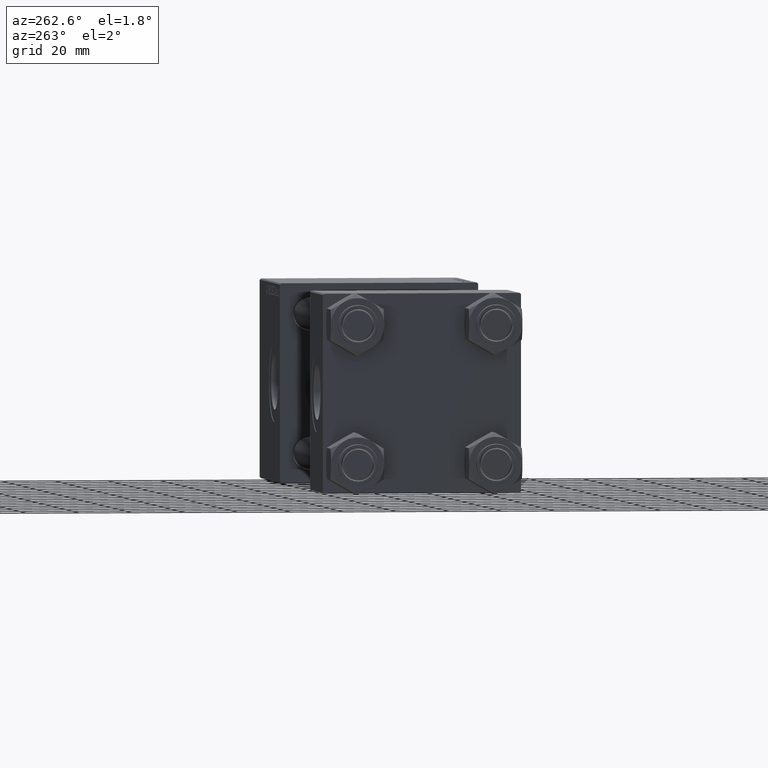
[diagram: clean part render]
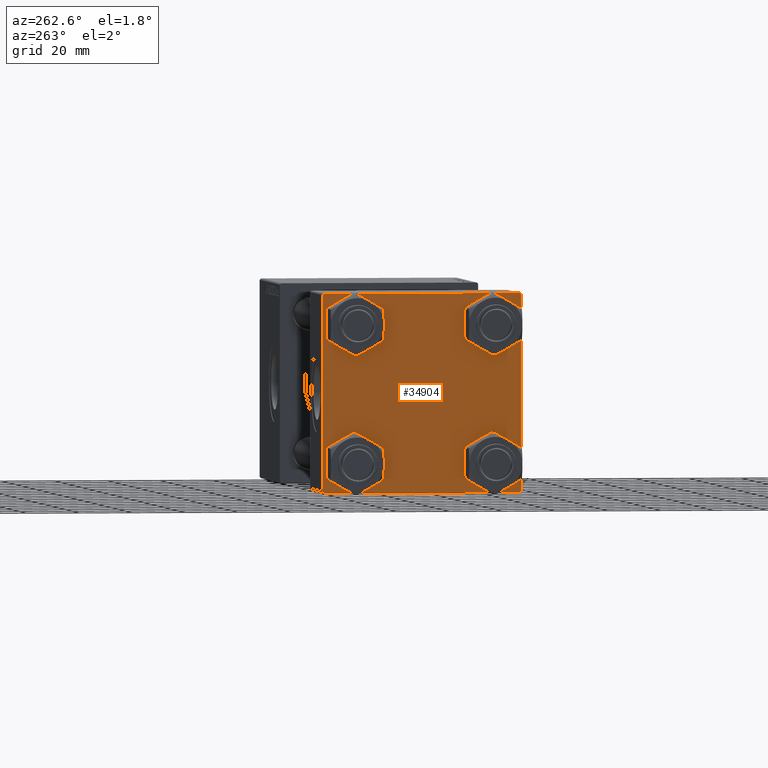
[diagram: same view with one face highlighted and labeled with its STEP entity id]
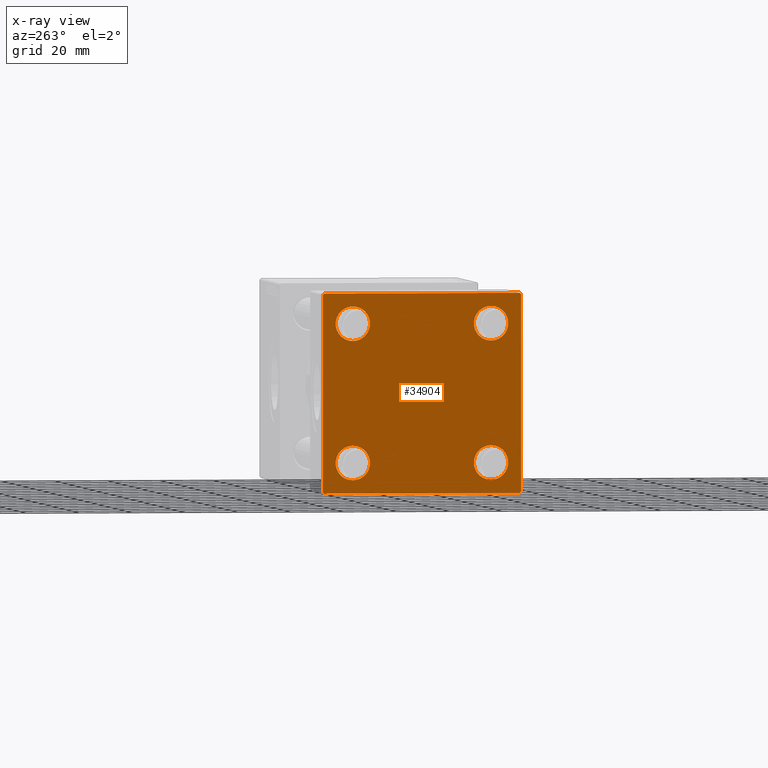
[diagram: x-ray of the same camera — body ghosted, the highlighted face saturated]
A machine part, auxiliary view. The second image highlights one B-rep face of the part: STEP entity #34904.
The next image is the same camera in x-ray: the body ghosted, the highlighted face saturated — about 0% of this face is hidden behind the body in this view.
In plain terms, the highlighted planar face has unit normal (-1, 0, 0).
Its self-contained STEP definition (entity closure, byte-faithful):
#216 = VECTOR ( 'NONE', #2105, 1000.000000000000000 ) ;
#533 = DIRECTION ( 'NONE',  ( -0.000000000000000000, 0.000000000000000000, 1.000000000000000000 ) ) ;
#679 = EDGE_CURVE ( 'NONE', #47823, #10723, #18340, .T. ) ;
#958 = EDGE_CURVE ( 'NONE', #45923, #44223, #37488, .T. ) ;
#1464 = ORIENTED_EDGE ( 'NONE', *, *, #958, .T. ) ;
#1476 = ORIENTED_EDGE ( 'NONE', *, *, #31667, .T. ) ;
#2105 = DIRECTION ( 'NONE',  ( 0.000000000000000000, -0.7071067811865524577, 0.7071067811865426878 ) ) ;
#2166 = CARTESIAN_POINT ( 'NONE',  ( 0.000000000000000000, 36.99999999999997868, -37.50000000000000000 ) ) ;
#2387 = CARTESIAN_POINT ( 'NONE',  ( 0.000000000000000000, 37.49999999999999289, -37.50000000000000000 ) ) ;
#4301 = ORIENTED_EDGE ( 'NONE', *, *, #29696, .T. ) ;
#4378 = FACE_OUTER_BOUND ( 'NONE', #45947, .T. ) ;
#4655 = DIRECTION ( 'NONE',  ( 0.000000000000000000, 0.000000000000000000, 1.000000000000000000 ) ) ;
#4882 = FACE_BOUND ( 'NONE', #27503, .T. ) ;
#5202 = ORIENTED_EDGE ( 'NONE', *, *, #679, .T. ) ;
#5826 = AXIS2_PLACEMENT_3D ( 'NONE', #35632, #47920, #533 ) ;
#6112 = VECTOR ( 'NONE', #18690, 1000.000000000000114 ) ;
#6126 = VECTOR ( 'NONE', #18018, 1000.000000000000000 ) ;
#6153 = CARTESIAN_POINT ( 'NONE',  ( 0.000000000000000000, 37.49999999999999289, 37.50000000000000000 ) ) ;
#6358 = CARTESIAN_POINT ( 'NONE',  ( 0.000000000000000000, -37.00000000000002132, -37.50000000000000711 ) ) ;
#6531 = VERTEX_POINT ( 'NONE', #13486 ) ;
#7433 = VERTEX_POINT ( 'NONE', #43440 ) ;
#7592 = CARTESIAN_POINT ( 'NONE',  ( 0.000000000000000000, -26.14999999999999147, 26.15000000000000924 ) ) ;
#7610 = VERTEX_POINT ( 'NONE', #37509 ) ;
#7713 = DIRECTION ( 'NONE',  ( 1.000000000000000000, -0.000000000000000000, 0.000000000000000000 ) ) ;
#7963 = CARTESIAN_POINT ( 'NONE',  ( 0.000000000000000000, 36.99999999999999289, 37.50000000000000000 ) ) ;
#8359 = DIRECTION ( 'NONE',  ( 1.000000000000000000, -0.000000000000000000, 0.000000000000000000 ) ) ;
#8375 = LINE ( 'NONE', #24004, #6112 ) ;
#8504 = AXIS2_PLACEMENT_3D ( 'NONE', #33680, #38292, #34189 ) ;
#8973 = LINE ( 'NONE', #32537, #49920 ) ;
#9138 = ORIENTED_EDGE ( 'NONE', *, *, #25536, .T. ) ;
#10403 = ORIENTED_EDGE ( 'NONE', *, *, #12844, .T. ) ;
#10723 = VERTEX_POINT ( 'NONE', #44681 ) ;
#10991 = CIRCLE ( 'NONE', #14233, 6.500000000000015987 ) ;
#10999 = AXIS2_PLACEMENT_3D ( 'NONE', #13990, #18593, #34215 ) ;
#11597 = CIRCLE ( 'NONE', #45122, 6.500000000000023093 ) ;
#11912 = EDGE_CURVE ( 'NONE', #46295, #49685, #8973, .T. ) ;
#12322 = FACE_BOUND ( 'NONE', #27232, .T. ) ;
#12394 = VECTOR ( 'NONE', #18691, 1000.000000000000000 ) ;
#12844 = EDGE_CURVE ( 'NONE', #38713, #19678, #36779, .T. ) ;
#13486 = CARTESIAN_POINT ( 'NONE',  ( 0.000000000000000000, -26.14999999999999147, -32.65000000000002700 ) ) ;
#13990 = CARTESIAN_POINT ( 'NONE',  ( 0.000000000000000000, -26.14999999999999147, 26.15000000000000924 ) ) ;
#14233 = AXIS2_PLACEMENT_3D ( 'NONE', #45381, #40566, #48960 ) ;
#14844 = AXIS2_PLACEMENT_3D ( 'NONE', #7592, #8359, #39624 ) ;
#15611 = DIRECTION ( 'NONE',  ( 0.000000000000000000, 0.000000000000000000, 1.000000000000000000 ) ) ;
#15809 = ORIENTED_EDGE ( 'NONE', *, *, #11912, .F. ) ;
#16072 = ORIENTED_EDGE ( 'NONE', *, *, #36114, .T. ) ;
#16770 = CARTESIAN_POINT ( 'NONE',  ( 0.000000000000000000, 37.49999999999999289, 37.50000000000000000 ) ) ;
#16907 = DIRECTION ( 'NONE',  ( -0.000000000000000000, -0.7071067811865474617, -0.7071067811865474617 ) ) ;
#17279 = EDGE_CURVE ( 'NONE', #7433, #40091, #21789, .T. ) ;
#17480 = LINE ( 'NONE', #24915, #216 ) ;
#18018 = DIRECTION ( 'NONE',  ( 0.000000000000000000, -1.000000000000000000, -9.251858538542972814E-17 ) ) ;
#18340 = CIRCLE ( 'NONE', #10999, 6.500000000000023093 ) ;
#18593 = DIRECTION ( 'NONE',  ( 1.000000000000000000, -0.000000000000000000, 0.000000000000000000 ) ) ;
#18690 = DIRECTION ( 'NONE',  ( -0.000000000000000000, 0.7071067811865474617, 0.7071067811865474617 ) ) ;
#18691 = DIRECTION ( 'NONE',  ( 0.000000000000000000, 0.000000000000000000, -1.000000000000000000 ) ) ;
#19678 = VERTEX_POINT ( 'NONE', #33696 ) ;
#20012 = PLANE ( 'NONE',  #5826 ) ;
#20035 = EDGE_CURVE ( 'NONE', #25371, #7610, #36230, .T. ) ;
#20489 = LINE ( 'NONE', #28177, #47072 ) ;
#20603 = ORIENTED_EDGE ( 'NONE', *, *, #26890, .T. ) ;
#21089 = EDGE_LOOP ( 'NONE', ( #41493, #10403 ) ) ;
#21119 = CARTESIAN_POINT ( 'NONE',  ( 0.000000000000000000, 26.14999999999999858, 32.65000000000002700 ) ) ;
#21230 = AXIS2_PLACEMENT_3D ( 'NONE', #27172, #7713, #23088 ) ;
#21789 = LINE ( 'NONE', #6153, #12394 ) ;
#22171 = ORIENTED_EDGE ( 'NONE', *, *, #17279, .T. ) ;
#22550 = CARTESIAN_POINT ( 'NONE',  ( 0.000000000000000000, -26.14999999999999147, 32.65000000000003411 ) ) ;
#22821 = CARTESIAN_POINT ( 'NONE',  ( 0.000000000000000000, -26.14999999999999147, -26.15000000000000924 ) ) ;
#23023 = DIRECTION ( 'NONE',  ( 0.000000000000000000, 0.7071067811865474617, -0.7071067811865474617 ) ) ;
#23088 = DIRECTION ( 'NONE',  ( 0.000000000000000000, 0.000000000000000000, 1.000000000000000000 ) ) ;
#24004 = CARTESIAN_POINT ( 'NONE',  ( -0.000000000000000000, -37.25000000000000000, 37.25000000000000000 ) ) ;
#24066 = AXIS2_PLACEMENT_3D ( 'NONE', #22821, #30230, #37681 ) ;
#24351 = CARTESIAN_POINT ( 'NONE',  ( 0.000000000000000000, 26.14999999999999858, -32.65000000000001990 ) ) ;
#24876 = CIRCLE ( 'NONE', #46146, 6.500000000000015987 ) ;
#24915 = CARTESIAN_POINT ( 'NONE',  ( 0.000000000000000000, -37.24999999999975842, -37.25000000000027001 ) ) ;
#25037 = EDGE_CURVE ( 'NONE', #19678, #38713, #10991, .T. ) ;
#25371 = VERTEX_POINT ( 'NONE', #7963 ) ;
#25536 = EDGE_CURVE ( 'NONE', #25371, #7433, #42490, .T. ) ;
#26358 = CARTESIAN_POINT ( 'NONE',  ( 0.000000000000000000, 37.24999999999999289, 37.24999999999999289 ) ) ;
#26890 = EDGE_CURVE ( 'NONE', #36356, #49363, #36294, .T. ) ;
#27172 = CARTESIAN_POINT ( 'NONE',  ( 0.000000000000000000, 26.14999999999999858, -26.15000000000000213 ) ) ;
#27232 = EDGE_LOOP ( 'NONE', ( #28607, #32526 ) ) ;
#27503 = EDGE_LOOP ( 'NONE', ( #20603, #16072 ) ) ;
#27643 = CARTESIAN_POINT ( 'NONE',  ( 0.000000000000000000, 26.14999999999999858, 26.15000000000000213 ) ) ;
#28122 = ORIENTED_EDGE ( 'NONE', *, *, #20035, .F. ) ;
#28172 = EDGE_CURVE ( 'NONE', #46086, #6531, #24876, .T. ) ;
#28177 = CARTESIAN_POINT ( 'NONE',  ( 0.000000000000000000, 37.24999999999998579, -37.24999999999998579 ) ) ;
#28607 = ORIENTED_EDGE ( 'NONE', *, *, #28172, .T. ) ;
#29419 = ORIENTED_EDGE ( 'NONE', *, *, #39317, .T. ) ;
#29696 = EDGE_CURVE ( 'NONE', #46295, #7610, #8375, .T. ) ;
#30230 = DIRECTION ( 'NONE',  ( 1.000000000000000000, -0.000000000000000000, 0.000000000000000000 ) ) ;
#31667 = EDGE_CURVE ( 'NONE', #40091, #45923, #20489, .T. ) ;
#31788 = FACE_BOUND ( 'NONE', #42935, .T. ) ;
#32526 = ORIENTED_EDGE ( 'NONE', *, *, #45358, .T. ) ;
#32537 = CARTESIAN_POINT ( 'NONE',  ( 0.000000000000000000, -37.50000000000000711, 37.49999999999999289 ) ) ;
#33680 = CARTESIAN_POINT ( 'NONE',  ( 0.000000000000000000, 26.14999999999999858, 26.15000000000000213 ) ) ;
#33696 = CARTESIAN_POINT ( 'NONE',  ( 0.000000000000000000, 26.14999999999999858, -19.64999999999998792 ) ) ;
#34189 = DIRECTION ( 'NONE',  ( 0.000000000000000000, 0.000000000000000000, 1.000000000000000000 ) ) ;
#34215 = DIRECTION ( 'NONE',  ( 0.000000000000000000, 0.000000000000000000, 1.000000000000000000 ) ) ;
#34904 = ADVANCED_FACE ( 'NONE', ( #31788, #12322, #39993, #4882, #4378 ), #20012, .T. ) ;
#35526 = VECTOR ( 'NONE', #23023, 1000.000000000000114 ) ;
#35632 = CARTESIAN_POINT ( 'NONE',  ( 0.000000000000000000, 0.000000000000000000, 0.000000000000000000 ) ) ;
#36114 = EDGE_CURVE ( 'NONE', #49363, #36356, #11597, .T. ) ;
#36230 = LINE ( 'NONE', #16770, #48424 ) ;
#36294 = CIRCLE ( 'NONE', #8504, 6.500000000000023093 ) ;
#36356 = VERTEX_POINT ( 'NONE', #21119 ) ;
#36491 = DIRECTION ( 'NONE',  ( 0.000000000000000000, -1.000000000000000000, -9.251858538542971581E-17 ) ) ;
#36779 = CIRCLE ( 'NONE', #21230, 6.500000000000015987 ) ;
#37387 = CARTESIAN_POINT ( 'NONE',  ( 0.000000000000000000, -37.50000000000000711, 36.99999999999999289 ) ) ;
#37488 = LINE ( 'NONE', #2387, #6126 ) ;
#37509 = CARTESIAN_POINT ( 'NONE',  ( 0.000000000000000000, -37.00000000000000711, 37.49999999999999289 ) ) ;
#37681 = DIRECTION ( 'NONE',  ( 0.000000000000000000, 0.000000000000000000, 1.000000000000000000 ) ) ;
#38292 = DIRECTION ( 'NONE',  ( 1.000000000000000000, -0.000000000000000000, 0.000000000000000000 ) ) ;
#38471 = EDGE_CURVE ( 'NONE', #44223, #49685, #17480, .T. ) ;
#38713 = VERTEX_POINT ( 'NONE', #24351 ) ;
#39215 = DIRECTION ( 'NONE',  ( 0.000000000000000000, 9.251858538542971581E-17, -1.000000000000000000 ) ) ;
#39317 = EDGE_CURVE ( 'NONE', #10723, #47823, #50123, .T. ) ;
#39624 = DIRECTION ( 'NONE',  ( 0.000000000000000000, 0.000000000000000000, 1.000000000000000000 ) ) ;
#39993 = FACE_BOUND ( 'NONE', #21089, .T. ) ;
#40091 = VERTEX_POINT ( 'NONE', #48859 ) ;
#40188 = ORIENTED_EDGE ( 'NONE', *, *, #38471, .T. ) ;
#40566 = DIRECTION ( 'NONE',  ( 1.000000000000000000, -0.000000000000000000, 0.000000000000000000 ) ) ;
#41493 = ORIENTED_EDGE ( 'NONE', *, *, #25037, .T. ) ;
#41760 = CARTESIAN_POINT ( 'NONE',  ( 0.000000000000000000, -37.50000000000000000, -37.00000000000003553 ) ) ;
#42490 = LINE ( 'NONE', #26358, #35526 ) ;
#42586 = CARTESIAN_POINT ( 'NONE',  ( 0.000000000000000000, 26.14999999999999858, 19.64999999999998437 ) ) ;
#42935 = EDGE_LOOP ( 'NONE', ( #5202, #29419 ) ) ;
#43331 = DIRECTION ( 'NONE',  ( 1.000000000000000000, -0.000000000000000000, 0.000000000000000000 ) ) ;
#43440 = CARTESIAN_POINT ( 'NONE',  ( 0.000000000000000000, 37.49999999999999289, 37.00000000000000000 ) ) ;
#44223 = VERTEX_POINT ( 'NONE', #6358 ) ;
#44681 = CARTESIAN_POINT ( 'NONE',  ( 0.000000000000000000, -26.14999999999999147, 19.64999999999999147 ) ) ;
#45122 = AXIS2_PLACEMENT_3D ( 'NONE', #27643, #50686, #15611 ) ;
#45358 = EDGE_CURVE ( 'NONE', #6531, #46086, #46985, .T. ) ;
#45381 = CARTESIAN_POINT ( 'NONE',  ( 0.000000000000000000, 26.14999999999999858, -26.15000000000000213 ) ) ;
#45923 = VERTEX_POINT ( 'NONE', #2166 ) ;
#45947 = EDGE_LOOP ( 'NONE', ( #22171, #1476, #1464, #40188, #15809, #4301, #28122, #9138 ) ) ;
#46086 = VERTEX_POINT ( 'NONE', #47975 ) ;
#46146 = AXIS2_PLACEMENT_3D ( 'NONE', #47173, #43331, #4655 ) ;
#46295 = VERTEX_POINT ( 'NONE', #37387 ) ;
#46985 = CIRCLE ( 'NONE', #24066, 6.500000000000015987 ) ;
#47072 = VECTOR ( 'NONE', #16907, 1000.000000000000114 ) ;
#47173 = CARTESIAN_POINT ( 'NONE',  ( 0.000000000000000000, -26.14999999999999147, -26.15000000000000924 ) ) ;
#47823 = VERTEX_POINT ( 'NONE', #22550 ) ;
#47920 = DIRECTION ( 'NONE',  ( -1.000000000000000000, 0.000000000000000000, -0.000000000000000000 ) ) ;
#47975 = CARTESIAN_POINT ( 'NONE',  ( 0.000000000000000000, -26.14999999999999147, -19.64999999999999503 ) ) ;
#48424 = VECTOR ( 'NONE', #36491, 1000.000000000000000 ) ;
#48859 = CARTESIAN_POINT ( 'NONE',  ( 0.000000000000000000, 37.49999999999999289, -36.99999999999998579 ) ) ;
#48960 = DIRECTION ( 'NONE',  ( 0.000000000000000000, 0.000000000000000000, 1.000000000000000000 ) ) ;
#49363 = VERTEX_POINT ( 'NONE', #42586 ) ;
#49685 = VERTEX_POINT ( 'NONE', #41760 ) ;
#49920 = VECTOR ( 'NONE', #39215, 1000.000000000000000 ) ;
#50123 = CIRCLE ( 'NONE', #14844, 6.500000000000023093 ) ;
#50686 = DIRECTION ( 'NONE',  ( 1.000000000000000000, -0.000000000000000000, 0.000000000000000000 ) ) ;